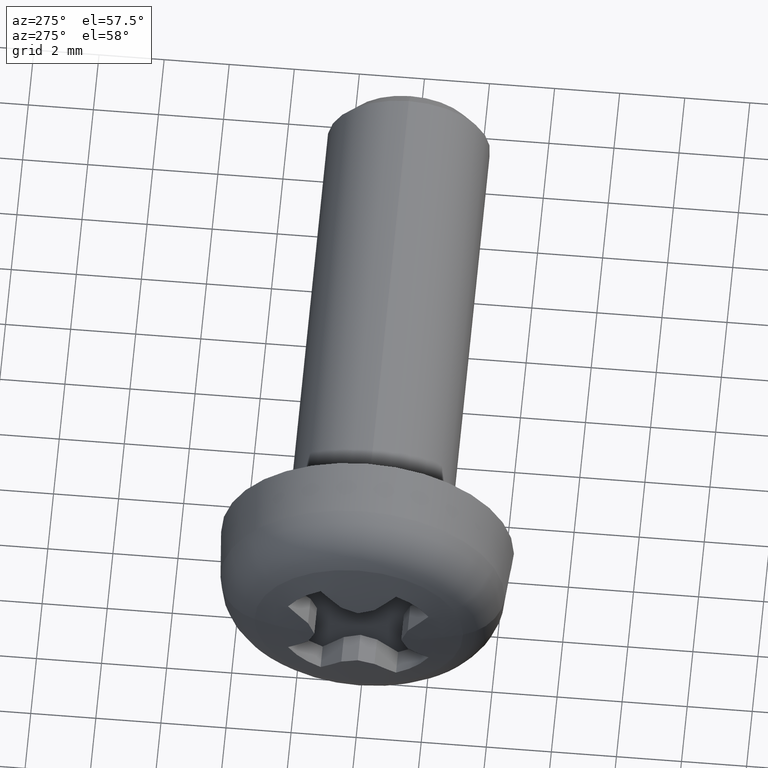
[diagram: clean part render]
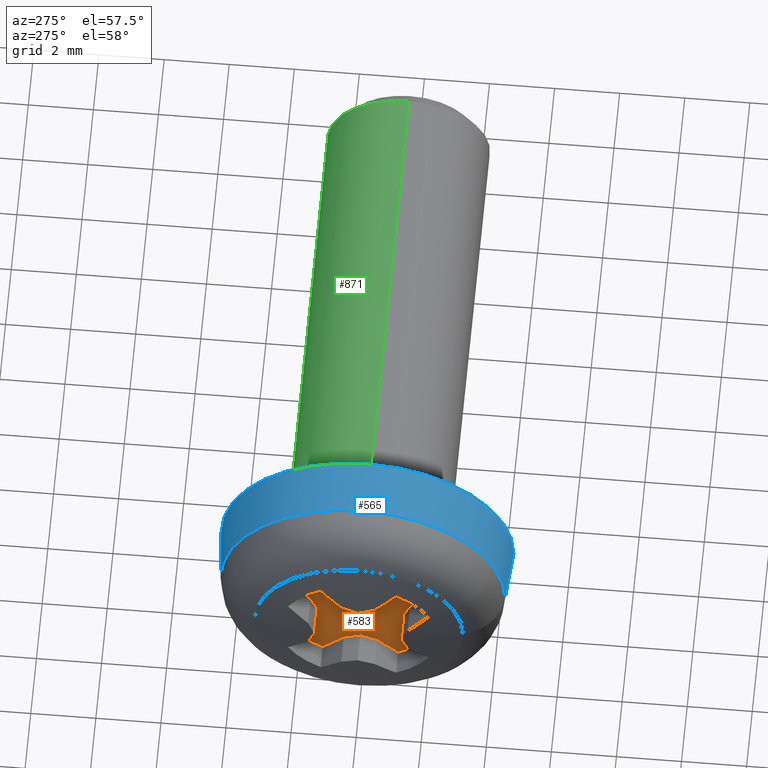
[diagram: same view with three faces highlighted in distinct colors, each labeled with its STEP entity id]
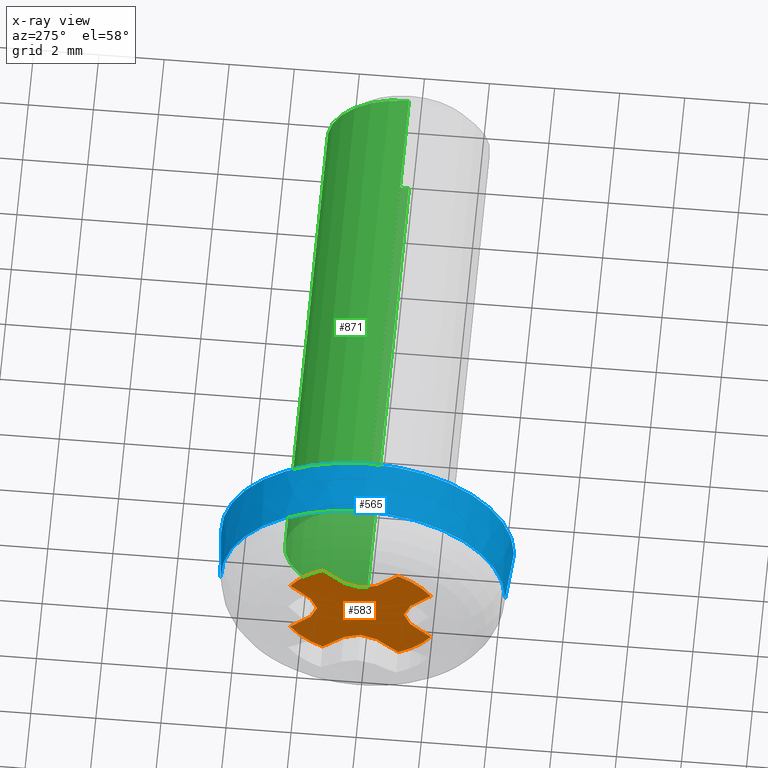
[diagram: x-ray of the same camera — body ghosted, the three highlighted faces saturated]
A machine part, auxiliary view with three faces highlighted in distinct colors.
The next image is the same camera in x-ray (body ghosted, the three faces saturated) — at least one of them is partly hidden behind the body in this view.
Their STEP definitions:

[orange] entity #583 — the highlighted planar face has unit normal (1, 0, 0).
#17 = EDGE_CURVE ( 'NONE', #65, #1077, #1180, .T. ) ;
#21 = CARTESIAN_POINT ( 'NONE',  ( -2.500000000000000000, -0.5093083929227741900, -1.530402332565709200 ) ) ;
#38 = VERTEX_POINT ( 'NONE', #355 ) ;
#41 = VECTOR ( 'NONE', #518, 1000.000000000000000 ) ;
#48 = CARTESIAN_POINT ( 'NONE',  ( -2.500000000000000000, -4.661192032140625300E-015, -1.334897157780971000 ) ) ;
#63 = FACE_OUTER_BOUND ( 'NONE', #839, .T. ) ;
#65 = VERTEX_POINT ( 'NONE', #400 ) ;
#76 = EDGE_CURVE ( 'NONE', #108, #282, #912, .T. ) ;
#92 = CARTESIAN_POINT ( 'NONE',  ( -2.500000000000000000, -4.661192032140625300E-015, -1.334897157780971000 ) ) ;
#104 = EDGE_CURVE ( 'NONE', #485, #1228, #1150, .T. ) ;
#105 = VECTOR ( 'NONE', #931, 1000.000000000000000 ) ;
#108 = VERTEX_POINT ( 'NONE', #122 ) ;
#111 = VERTEX_POINT ( 'NONE', #1002 ) ;
#115 = EDGE_CURVE ( 'NONE', #340, #948, #298, .T. ) ;
#117 = DIRECTION ( 'NONE',  ( 1.000000000000000000, 0.0000000000000000000, 0.0000000000000000000 ) ) ;
#118 = DIRECTION ( 'NONE',  ( 1.000000000000000000, 0.0000000000000000000, 0.0000000000000000000 ) ) ;
#122 = CARTESIAN_POINT ( 'NONE',  ( -2.500000000000000000, -1.634930278594939400E-016, 1.334897157782241900 ) ) ;
#126 = CARTESIAN_POINT ( 'NONE',  ( -2.500000000000000000, 1.634930278594939400E-016, -1.334897157782241900 ) ) ;
#130 = LINE ( 'NONE', #246, #105 ) ;
#134 = EDGE_CURVE ( 'NONE', #1016, #492, #558, .T. ) ;
#136 = VECTOR ( 'NONE', #255, 1000.000000000000100 ) ;
#142 = DIRECTION ( 'NONE',  ( 0.0000000000000000000, -0.3583679495453077100, -0.9335804264971989700 ) ) ;
#188 = CARTESIAN_POINT ( 'NONE',  ( -2.500000000000000000, 0.5093083929227848500, 1.530402332565705700 ) ) ;
#198 = CARTESIAN_POINT ( 'NONE',  ( -2.500000000000000000, 0.0000000000000000000, -0.0000000000000000000 ) ) ;
#209 = EDGE_CURVE ( 'NONE', #492, #1149, #792, .T. ) ;
#244 = CARTESIAN_POINT ( 'NONE',  ( -2.500000000000000000, 1.530402332566306300, 0.5093083929209795100 ) ) ;
#246 = CARTESIAN_POINT ( 'NONE',  ( -2.500000000000000000, -1.334897157780971000, 4.235164736271501700E-019 ) ) ;
#248 = CARTESIAN_POINT ( 'NONE',  ( -2.500000000000000000, 0.0000000000000000000, 0.0000000000000000000 ) ) ;
#255 = DIRECTION ( 'NONE',  ( 0.0000000000000000000, 0.7193398003386477500, -0.6946583704590007000 ) ) ;
#272 = AXIS2_PLACEMENT_3D ( 'NONE', #248, #1229, #629 ) ;
#274 = VECTOR ( 'NONE', #501, 1000.000000000000000 ) ;
#282 = VERTEX_POINT ( 'NONE', #888 ) ;
#286 = CARTESIAN_POINT ( 'NONE',  ( -2.500000000000000000, 1.159479238436129700, 2.158265019787024100 ) ) ;
#289 = CARTESIAN_POINT ( 'NONE',  ( -2.500000000000000000, 2.158265019787036100, -1.159479238436107200 ) ) ;
#290 = CARTESIAN_POINT ( 'NONE',  ( -2.500000000000000000, 1.334897157780971000, -4.235164736271501700E-019 ) ) ;
#298 = LINE ( 'NONE', #126, #41 ) ;
#309 = EDGE_CURVE ( 'NONE', #630, #1128, #1230, .T. ) ;
#317 = CARTESIAN_POINT ( 'NONE',  ( -2.500000000000000000, 0.5093083929209955000, -1.530402332566300800 ) ) ;
#319 = DIRECTION ( 'NONE',  ( -0.0000000000000000000, -0.6946583704602968800, 0.7193398003373960800 ) ) ;
#340 = VERTEX_POINT ( 'NONE', #92 ) ;
#341 = DIRECTION ( 'NONE',  ( 0.0000000000000000000, -0.7193398003386477500, 0.6946583704590007000 ) ) ;
#343 = ORIENTED_EDGE ( 'NONE', *, *, #346, .F. ) ;
#346 = EDGE_CURVE ( 'NONE', #38, #65, #1198, .T. ) ;
#347 = AXIS2_PLACEMENT_3D ( 'NONE', #600, #118, #704 ) ;
#355 = CARTESIAN_POINT ( 'NONE',  ( -2.500000000000000000, -1.530402332566302500, -0.5093083929209901700 ) ) ;
#385 = ORIENTED_EDGE ( 'NONE', *, *, #491, .F. ) ;
#391 = LINE ( 'NONE', #459, #136 ) ;
#393 = DIRECTION ( 'NONE',  ( 0.0000000000000000000, -0.9335804264972037400, -0.3583679495452951600 ) ) ;
#395 = ORIENTED_EDGE ( 'NONE', *, *, #209, .F. ) ;
#398 = EDGE_CURVE ( 'NONE', #455, #108, #756, .T. ) ;
#400 = CARTESIAN_POINT ( 'NONE',  ( -2.500000000000000000, -2.158265019787053900, -1.159479238436074100 ) ) ;
#422 = VERTEX_POINT ( 'NONE', #868 ) ;
#424 = LINE ( 'NONE', #635, #1152 ) ;
#442 = ORIENTED_EDGE ( 'NONE', *, *, #134, .F. ) ;
#445 = ORIENTED_EDGE ( 'NONE', *, *, #309, .F. ) ;
#455 = VERTEX_POINT ( 'NONE', #188 ) ;
#456 = CARTESIAN_POINT ( 'NONE',  ( -2.500000000000000000, 1.334897157782241900, -1.381881251915481200E-014 ) ) ;
#459 = CARTESIAN_POINT ( 'NONE',  ( -2.500000000000000000, 0.5093083929209955000, -1.530402332566300800 ) ) ;
#485 = VERTEX_POINT ( 'NONE', #1154 ) ;
#491 = EDGE_CURVE ( 'NONE', #695, #485, #657, .T. ) ;
#492 = VERTEX_POINT ( 'NONE', #900 ) ;
#495 = VECTOR ( 'NONE', #393, 1000.000000000000000 ) ;
#501 = DIRECTION ( 'NONE',  ( -0.0000000000000000000, -0.3583679495453049300, 0.9335804264971999700 ) ) ;
#518 = DIRECTION ( 'NONE',  ( 0.0000000000000000000, 0.9335804264972001900, -0.3583679495453044300 ) ) ;
#530 = AXIS2_PLACEMENT_3D ( 'NONE', #198, #876, #649 ) ;
#540 = ORIENTED_EDGE ( 'NONE', *, *, #577, .F. ) ;
#554 = LINE ( 'NONE', #456, #1060 ) ;
#558 = LINE ( 'NONE', #1101, #620 ) ;
#567 = ORIENTED_EDGE ( 'NONE', *, *, #104, .F. ) ;
#571 = EDGE_CURVE ( 'NONE', #1149, #630, #554, .T. ) ;
#572 = CARTESIAN_POINT ( 'NONE',  ( -2.500000000000000000, -1.530402332565711000, 0.5093083929227688600 ) ) ;
#577 = EDGE_CURVE ( 'NONE', #111, #38, #812, .T. ) ;
#582 = CARTESIAN_POINT ( 'NONE',  ( -2.500000000000000000, -1.159479238436114800, -2.158265019787032100 ) ) ;
#583 = ADVANCED_FACE ( 'NONE', ( #63 ), #735, .F. ) ;
#597 = ORIENTED_EDGE ( 'NONE', *, *, #1044, .F. ) ;
#600 = CARTESIAN_POINT ( 'NONE',  ( -2.500000000000000000, 0.0000000000000000000, 0.0000000000000000000 ) ) ;
#616 = VECTOR ( 'NONE', #739, 1000.000000000000000 ) ;
#620 = VECTOR ( 'NONE', #319, 1000.000000000000100 ) ;
#624 = DIRECTION ( 'NONE',  ( 0.0000000000000000000, 0.6946583704602968800, -0.7193398003373960800 ) ) ;
#627 = DIRECTION ( 'NONE',  ( 0.0000000000000000000, 1.000000000000000000, -1.047444401652939800E-014 ) ) ;
#629 = DIRECTION ( 'NONE',  ( 0.0000000000000000000, 0.0000000000000000000, -1.000000000000000000 ) ) ;
#630 = VERTEX_POINT ( 'NONE', #244 ) ;
#635 = CARTESIAN_POINT ( 'NONE',  ( -2.500000000000000000, -0.5093083929209955000, 1.530402332566300800 ) ) ;
#643 = CARTESIAN_POINT ( 'NONE',  ( -2.500000000000000000, 0.5093083929227848500, 1.530402332565705700 ) ) ;
#648 = CARTESIAN_POINT ( 'NONE',  ( -2.500000000000000000, -1.159479238436081700, 2.158265019787049900 ) ) ;
#649 = DIRECTION ( 'NONE',  ( 0.0000000000000000000, -1.000000000000000000, 3.491481338843133400E-015 ) ) ;
#657 = CIRCLE ( 'NONE', #684, 2.450000000000145400 ) ;
#661 = EDGE_CURVE ( 'NONE', #811, #455, #993, .T. ) ;
#678 = LINE ( 'NONE', #48, #616 ) ;
#684 = AXIS2_PLACEMENT_3D ( 'NONE', #802, #117, #703 ) ;
#685 = VECTOR ( 'NONE', #747, 1000.000000000000100 ) ;
#695 = VERTEX_POINT ( 'NONE', #648 ) ;
#699 = VECTOR ( 'NONE', #1206, 1000.000000000000000 ) ;
#703 = DIRECTION ( 'NONE',  ( 0.0000000000000000000, 0.0000000000000000000, 1.000000000000000000 ) ) ;
#704 = DIRECTION ( 'NONE',  ( 0.0000000000000000000, 0.0000000000000000000, -1.000000000000000000 ) ) ;
#706 = EDGE_CURVE ( 'NONE', #948, #422, #391, .T. ) ;
#733 = CIRCLE ( 'NONE', #807, 2.450000000000145400 ) ;
#735 = PLANE ( 'NONE',  #272 ) ;
#739 = DIRECTION ( 'NONE',  ( 0.0000000000000000000, 0.9335804264972011900, 0.3583679495453016600 ) ) ;
#747 = DIRECTION ( 'NONE',  ( 0.0000000000000000000, -0.7193398003374033000, -0.6946583704602893300 ) ) ;
#756 = LINE ( 'NONE', #885, #495 ) ;
#765 = CARTESIAN_POINT ( 'NONE',  ( -2.500000000000000000, -0.5093083929227741900, -1.530402332565709200 ) ) ;
#769 = CARTESIAN_POINT ( 'NONE',  ( -2.500000000000000000, -1.530402332566302500, -0.5093083929209901700 ) ) ;
#792 = LINE ( 'NONE', #1211, #274 ) ;
#802 = CARTESIAN_POINT ( 'NONE',  ( -2.500000000000000000, 0.0000000000000000000, 0.0000000000000000000 ) ) ;
#807 = AXIS2_PLACEMENT_3D ( 'NONE', #982, #867, #627 ) ;
#811 = VERTEX_POINT ( 'NONE', #286 ) ;
#812 = LINE ( 'NONE', #1043, #1088 ) ;
#815 = ORIENTED_EDGE ( 'NONE', *, *, #892, .F. ) ;
#825 = CIRCLE ( 'NONE', #347, 2.450000000000145400 ) ;
#833 = DIRECTION ( 'NONE',  ( 0.0000000000000000000, 0.3583679495453142000, 0.9335804264971964100 ) ) ;
#839 = EDGE_LOOP ( 'NONE', ( #891, #815, #597, #1204, #343, #540, #1017, #567, #385, #976, #1267, #1050, #1196, #1245, #445, #1165, #395, #442, #894, #908 ) ) ;
#866 = DIRECTION ( 'NONE',  ( 0.0000000000000000000, -0.6946583704590032500, -0.7193398003386453100 ) ) ;
#867 = DIRECTION ( 'NONE',  ( 1.000000000000000000, 0.0000000000000000000, 0.0000000000000000000 ) ) ;
#868 = CARTESIAN_POINT ( 'NONE',  ( -2.500000000000000000, 1.159479238436081700, -2.158265019787049900 ) ) ;
#876 = DIRECTION ( 'NONE',  ( 1.000000000000000000, 0.0000000000000000000, 0.0000000000000000000 ) ) ;
#877 = VECTOR ( 'NONE', #1242, 1000.000000000000000 ) ;
#885 = CARTESIAN_POINT ( 'NONE',  ( -2.500000000000000000, 1.398272906347462200E-014, 1.334897157780971000 ) ) ;
#886 = EDGE_CURVE ( 'NONE', #282, #695, #424, .T. ) ;
#888 = CARTESIAN_POINT ( 'NONE',  ( -2.500000000000000000, -0.5093083929209955000, 1.530402332566300800 ) ) ;
#891 = ORIENTED_EDGE ( 'NONE', *, *, #115, .F. ) ;
#892 = EDGE_CURVE ( 'NONE', #1103, #340, #678, .T. ) ;
#894 = ORIENTED_EDGE ( 'NONE', *, *, #1029, .F. ) ;
#900 = CARTESIAN_POINT ( 'NONE',  ( -2.500000000000000000, 1.530402332565711000, -0.5093083929227688600 ) ) ;
#908 = ORIENTED_EDGE ( 'NONE', *, *, #706, .F. ) ;
#912 = LINE ( 'NONE', #974, #877 ) ;
#914 = EDGE_CURVE ( 'NONE', #1228, #111, #130, .T. ) ;
#931 = DIRECTION ( 'NONE',  ( 0.0000000000000000000, 0.3583679495453049300, -0.9335804264971999700 ) ) ;
#948 = VERTEX_POINT ( 'NONE', #317 ) ;
#974 = CARTESIAN_POINT ( 'NONE',  ( -2.500000000000000000, -1.634930278594939400E-016, 1.334897157782241900 ) ) ;
#976 = ORIENTED_EDGE ( 'NONE', *, *, #886, .F. ) ;
#982 = CARTESIAN_POINT ( 'NONE',  ( -2.500000000000000000, 0.0000000000000000000, 0.0000000000000000000 ) ) ;
#986 = CARTESIAN_POINT ( 'NONE',  ( -2.500000000000000000, 2.158265019787062300, 1.159479238436059300 ) ) ;
#993 = LINE ( 'NONE', #643, #685 ) ;
#1002 = CARTESIAN_POINT ( 'NONE',  ( -2.500000000000000000, -1.334897157782241900, 4.497275487811942400E-015 ) ) ;
#1013 = CARTESIAN_POINT ( 'NONE',  ( -2.500000000000000000, 1.530402332566306300, 0.5093083929209795100 ) ) ;
#1016 = VERTEX_POINT ( 'NONE', #289 ) ;
#1017 = ORIENTED_EDGE ( 'NONE', *, *, #914, .F. ) ;
#1029 = EDGE_CURVE ( 'NONE', #422, #1016, #825, .T. ) ;
#1040 = VECTOR ( 'NONE', #1275, 1000.000000000000000 ) ;
#1043 = CARTESIAN_POINT ( 'NONE',  ( -2.500000000000000000, -1.334897157782241900, 4.497275487811942400E-015 ) ) ;
#1044 = EDGE_CURVE ( 'NONE', #1077, #1103, #1065, .T. ) ;
#1050 = ORIENTED_EDGE ( 'NONE', *, *, #398, .F. ) ;
#1060 = VECTOR ( 'NONE', #833, 1000.000000000000000 ) ;
#1065 = LINE ( 'NONE', #21, #1040 ) ;
#1074 = EDGE_CURVE ( 'NONE', #1128, #811, #733, .T. ) ;
#1077 = VERTEX_POINT ( 'NONE', #582 ) ;
#1086 = CARTESIAN_POINT ( 'NONE',  ( -2.500000000000000000, -1.530402332565711000, 0.5093083929227688600 ) ) ;
#1088 = VECTOR ( 'NONE', #142, 1000.000000000000000 ) ;
#1092 = VECTOR ( 'NONE', #866, 1000.000000000000100 ) ;
#1094 = VECTOR ( 'NONE', #624, 1000.000000000000100 ) ;
#1101 = CARTESIAN_POINT ( 'NONE',  ( -2.500000000000000000, 1.530402332565711000, -0.5093083929227688600 ) ) ;
#1103 = VERTEX_POINT ( 'NONE', #765 ) ;
#1128 = VERTEX_POINT ( 'NONE', #986 ) ;
#1149 = VERTEX_POINT ( 'NONE', #290 ) ;
#1150 = LINE ( 'NONE', #572, #1094 ) ;
#1152 = VECTOR ( 'NONE', #341, 1000.000000000000100 ) ;
#1154 = CARTESIAN_POINT ( 'NONE',  ( -2.500000000000000000, -2.158265019787036100, 1.159479238436107200 ) ) ;
#1165 = ORIENTED_EDGE ( 'NONE', *, *, #571, .F. ) ;
#1180 = CIRCLE ( 'NONE', #530, 2.450000000000145400 ) ;
#1196 = ORIENTED_EDGE ( 'NONE', *, *, #661, .F. ) ;
#1198 = LINE ( 'NONE', #769, #1092 ) ;
#1204 = ORIENTED_EDGE ( 'NONE', *, *, #17, .F. ) ;
#1206 = DIRECTION ( 'NONE',  ( 0.0000000000000000000, 0.6946583704590083600, 0.7193398003386405300 ) ) ;
#1211 = CARTESIAN_POINT ( 'NONE',  ( -2.500000000000000000, 1.334897157780971000, -4.235164736271501700E-019 ) ) ;
#1228 = VERTEX_POINT ( 'NONE', #1086 ) ;
#1229 = DIRECTION ( 'NONE',  ( 1.000000000000000000, 0.0000000000000000000, 0.0000000000000000000 ) ) ;
#1230 = LINE ( 'NONE', #1013, #699 ) ;
#1242 = DIRECTION ( 'NONE',  ( 0.0000000000000000000, -0.9335804264972001900, 0.3583679495453044300 ) ) ;
#1245 = ORIENTED_EDGE ( 'NONE', *, *, #1074, .F. ) ;
#1267 = ORIENTED_EDGE ( 'NONE', *, *, #76, .F. ) ;
#1275 = DIRECTION ( 'NONE',  ( 0.0000000000000000000, 0.7193398003373985300, 0.6946583704602944400 ) ) ;

[blue] entity #565 — the highlighted conical surface has half-angle 4.398 deg.
#9 = AXIS2_PLACEMENT_3D ( 'NONE', #350, #609, #806 ) ;
#31 = CARTESIAN_POINT ( 'NONE',  ( -1.644733406041990700, 4.373513440437846200, 0.0000000000000000000 ) ) ;
#35 = CONICAL_SURFACE ( 'NONE', #9, 4.499999999994828100, 0.07675291547445781100 ) ;
#46 = CARTESIAN_POINT ( 'NONE',  ( 2.230358754842037700E-015, -4.499999999994828100, 5.510910596156756000E-016 ) ) ;
#74 = DIRECTION ( 'NONE',  ( 1.000000000000000000, 2.478176394271778600E-016, -0.0000000000000000000 ) ) ;
#149 = CARTESIAN_POINT ( 'NONE',  ( 2.230358754842037700E-015, -4.499999999994828100, 5.510910596156756000E-016 ) ) ;
#155 = FACE_OUTER_BOUND ( 'NONE', #674, .T. ) ;
#168 = CARTESIAN_POINT ( 'NONE',  ( 1.115179377421018900E-015, 2.763611208503467700E-031, 0.0000000000000000000 ) ) ;
#265 = CIRCLE ( 'NONE', #335, 4.373513440437846200 ) ;
#307 = ORIENTED_EDGE ( 'NONE', *, *, #339, .F. ) ;
#335 = AXIS2_PLACEMENT_3D ( 'NONE', #1025, #434, #528 ) ;
#339 = EDGE_CURVE ( 'NONE', #465, #570, #820, .T. ) ;
#350 = CARTESIAN_POINT ( 'NONE',  ( 1.115179377421018900E-015, 2.763611208503467700E-031, 0.0000000000000000000 ) ) ;
#414 = ORIENTED_EDGE ( 'NONE', *, *, #644, .T. ) ;
#434 = DIRECTION ( 'NONE',  ( 1.000000000000000000, 2.478176394271778600E-016, -0.0000000000000000000 ) ) ;
#465 = VERTEX_POINT ( 'NONE', #31 ) ;
#472 = DIRECTION ( 'NONE',  ( -2.478176394271779100E-016, 1.000000000000000000, 0.0000000000000000000 ) ) ;
#528 = DIRECTION ( 'NONE',  ( -2.479018727737033300E-016, 1.000000000000000000, 0.0000000000000000000 ) ) ;
#557 = VECTOR ( 'NONE', #1272, 1000.000000000000100 ) ;
#565 = ADVANCED_FACE ( 'NONE', ( #155 ), #35, .T. ) ;
#570 = VERTEX_POINT ( 'NONE', #634 ) ;
#609 = DIRECTION ( 'NONE',  ( 1.000000000000000000, 2.478176394271778600E-016, -0.0000000000000000000 ) ) ;
#613 = EDGE_CURVE ( 'NONE', #465, #944, #265, .T. ) ;
#619 = DIRECTION ( 'NONE',  ( 0.9970559406991360600, -0.07667757896908947200, 9.390295165086414000E-018 ) ) ;
#634 = CARTESIAN_POINT ( 'NONE',  ( 0.0000000000000000000, 4.499999999994828100, 0.0000000000000000000 ) ) ;
#644 = EDGE_CURVE ( 'NONE', #944, #751, #1251, .T. ) ;
#674 = EDGE_LOOP ( 'NONE', ( #777, #414, #889, #307 ) ) ;
#751 = VERTEX_POINT ( 'NONE', #149 ) ;
#777 = ORIENTED_EDGE ( 'NONE', *, *, #613, .T. ) ;
#778 = CARTESIAN_POINT ( 'NONE',  ( -1.644733406041988500, -4.373513440437846200, 5.433459916008446800E-016 ) ) ;
#806 = DIRECTION ( 'NONE',  ( -2.478176394271779100E-016, 1.000000000000000000, 0.0000000000000000000 ) ) ;
#820 = LINE ( 'NONE', #1194, #557 ) ;
#889 = ORIENTED_EDGE ( 'NONE', *, *, #1139, .F. ) ;
#944 = VERTEX_POINT ( 'NONE', #778 ) ;
#947 = AXIS2_PLACEMENT_3D ( 'NONE', #168, #74, #472 ) ;
#1025 = CARTESIAN_POINT ( 'NONE',  ( -1.644733406041989600, -4.075939501723478800E-016, 0.0000000000000000000 ) ) ;
#1037 = CIRCLE ( 'NONE', #947, 4.499999999994828100 ) ;
#1139 = EDGE_CURVE ( 'NONE', #570, #751, #1037, .T. ) ;
#1194 = CARTESIAN_POINT ( 'NONE',  ( 0.0000000000000000000, 4.499999999994828100, 0.0000000000000000000 ) ) ;
#1214 = VECTOR ( 'NONE', #619, 1000.000000000000000 ) ;
#1251 = LINE ( 'NONE', #46, #1214 ) ;
#1272 = DIRECTION ( 'NONE',  ( 0.9970559406991359500, 0.07667757896908995700, 0.0000000000000000000 ) ) ;

[green] entity #871 — the highlighted cylindrical surface (partial cylindrical patch) has radius 2.5 mm, axis along (-1, -0, -0).
#30 = CARTESIAN_POINT ( 'NONE',  ( -0.4000000000000000200, 0.0000000000000000000, 0.0000000000000000000 ) ) ;
#40 = DIRECTION ( 'NONE',  ( -1.000000000000000000, -0.0000000000000000000, -0.0000000000000000000 ) ) ;
#73 = VECTOR ( 'NONE', #591, 1000.000000000000000 ) ;
#138 = CARTESIAN_POINT ( 'NONE',  ( 14.49999999999999300, 0.0000000000000000000, 2.500000000000000000 ) ) ;
#150 = AXIS2_PLACEMENT_3D ( 'NONE', #30, #1119, #773 ) ;
#157 = VERTEX_POINT ( 'NONE', #828 ) ;
#161 = FACE_OUTER_BOUND ( 'NONE', #221, .T. ) ;
#164 = EDGE_CURVE ( 'NONE', #941, #1059, #331, .T. ) ;
#193 = VERTEX_POINT ( 'NONE', #1183 ) ;
#220 = AXIS2_PLACEMENT_3D ( 'NONE', #984, #995, #490 ) ;
#221 = EDGE_LOOP ( 'NONE', ( #905, #1106, #770, #366 ) ) ;
#242 = CIRCLE ( 'NONE', #220, 2.500000000000000000 ) ;
#250 = CARTESIAN_POINT ( 'NONE',  ( 15.00000000000000000, 0.0000000000000000000, 0.0000000000000000000 ) ) ;
#331 = LINE ( 'NONE', #397, #73 ) ;
#366 = ORIENTED_EDGE ( 'NONE', *, *, #164, .F. ) ;
#381 = CARTESIAN_POINT ( 'NONE',  ( -0.4000000000000000200, 0.0000000000000000000, 2.500000000000000000 ) ) ;
#397 = CARTESIAN_POINT ( 'NONE',  ( 15.00000000000000000, 0.0000000000000000000, 2.500000000000000000 ) ) ;
#408 = EDGE_CURVE ( 'NONE', #941, #193, #242, .T. ) ;
#423 = CARTESIAN_POINT ( 'NONE',  ( 15.00000000000000000, 3.061616997868383100E-016, -2.500000000000000000 ) ) ;
#460 = VECTOR ( 'NONE', #40, 1000.000000000000000 ) ;
#490 = DIRECTION ( 'NONE',  ( 0.0000000000000000000, 0.0000000000000000000, -1.000000000000000000 ) ) ;
#560 = CIRCLE ( 'NONE', #150, 2.500000000000000000 ) ;
#591 = DIRECTION ( 'NONE',  ( -1.000000000000000000, -0.0000000000000000000, -0.0000000000000000000 ) ) ;
#638 = EDGE_CURVE ( 'NONE', #193, #157, #720, .T. ) ;
#647 = CYLINDRICAL_SURFACE ( 'NONE', #970, 2.500000000000000000 ) ;
#720 = LINE ( 'NONE', #423, #460 ) ;
#742 = DIRECTION ( 'NONE',  ( 0.0000000000000000000, 0.0000000000000000000, 1.000000000000000000 ) ) ;
#770 = ORIENTED_EDGE ( 'NONE', *, *, #989, .T. ) ;
#773 = DIRECTION ( 'NONE',  ( 0.0000000000000000000, 0.0000000000000000000, -1.000000000000000000 ) ) ;
#828 = CARTESIAN_POINT ( 'NONE',  ( -0.4000000000000000200, 3.061616997868383100E-016, -2.500000000000000000 ) ) ;
#871 = ADVANCED_FACE ( 'NONE', ( #161 ), #647, .T. ) ;
#905 = ORIENTED_EDGE ( 'NONE', *, *, #408, .T. ) ;
#941 = VERTEX_POINT ( 'NONE', #138 ) ;
#943 = DIRECTION ( 'NONE',  ( -1.000000000000000000, -0.0000000000000000000, -0.0000000000000000000 ) ) ;
#970 = AXIS2_PLACEMENT_3D ( 'NONE', #250, #943, #742 ) ;
#984 = CARTESIAN_POINT ( 'NONE',  ( 14.49999999999999300, 0.0000000000000000000, 0.0000000000000000000 ) ) ;
#989 = EDGE_CURVE ( 'NONE', #157, #1059, #560, .T. ) ;
#995 = DIRECTION ( 'NONE',  ( -1.000000000000000000, 0.0000000000000000000, 0.0000000000000000000 ) ) ;
#1059 = VERTEX_POINT ( 'NONE', #381 ) ;
#1106 = ORIENTED_EDGE ( 'NONE', *, *, #638, .T. ) ;
#1119 = DIRECTION ( 'NONE',  ( 1.000000000000000000, 0.0000000000000000000, 0.0000000000000000000 ) ) ;
#1183 = CARTESIAN_POINT ( 'NONE',  ( 14.49999999999999300, 3.061616997868383100E-016, -2.500000000000000000 ) ) ;